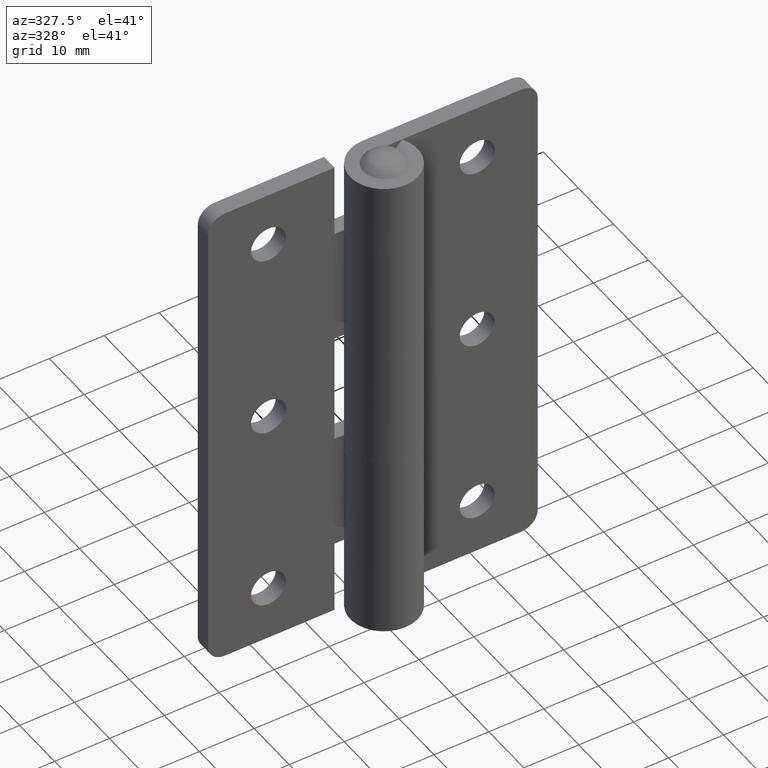
[diagram: clean part render]
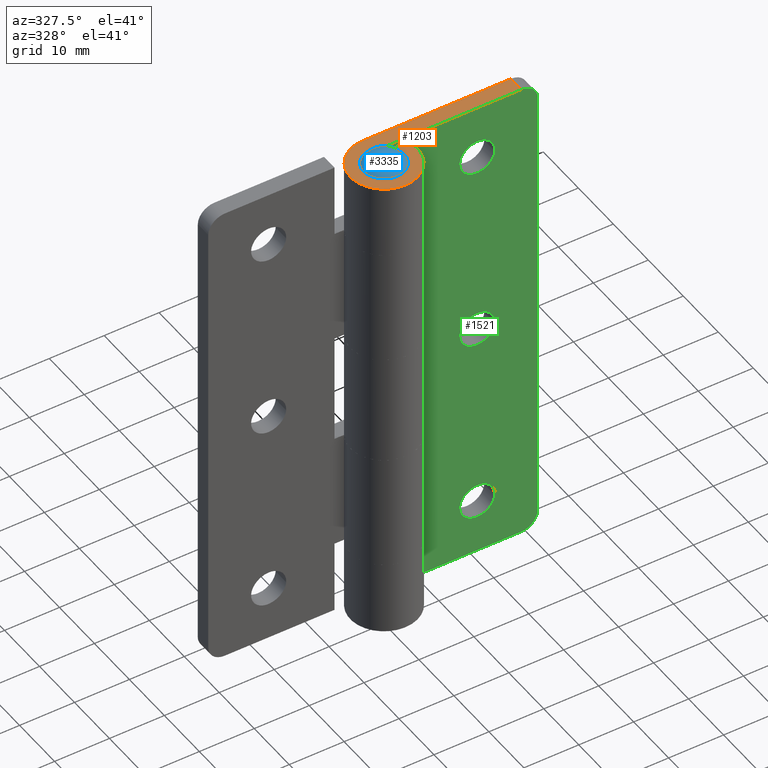
[diagram: same view with three faces highlighted in distinct colors, each labeled with its STEP entity id]
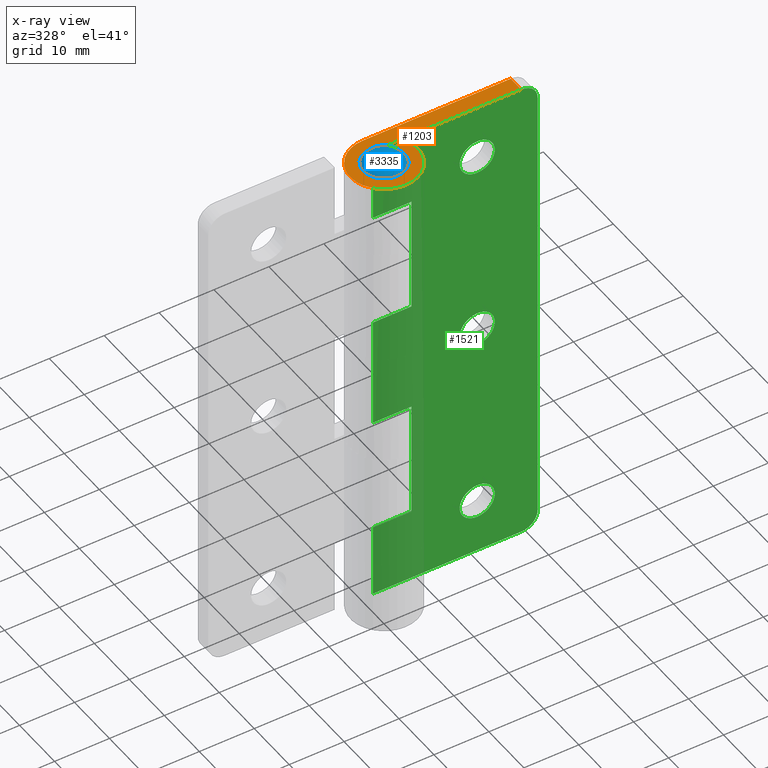
[diagram: x-ray of the same camera — body ghosted, the three highlighted faces saturated]
A machine part, auxiliary view with three faces highlighted in distinct colors.
The next image is the same camera in x-ray (body ghosted, the three faces saturated) — at least one of them is partly hidden behind the body in this view.
Their STEP definitions:

[orange] entity #1203 — the highlighted face is a freeform B-spline surface patch.
#604=CARTESIAN_POINT('',(27.0,6.150000000000000,90.0));
#605=VERTEX_POINT('',#604);
#621=CARTESIAN_POINT('',(27.0,3.150000000000000,90.0));
#622=VERTEX_POINT('',#621);
#623=CARTESIAN_POINT('',(27.0,3.150000000000000,90.0));
#624=CARTESIAN_POINT('',(27.0,6.150000000000000,90.0));
#625=QUASI_UNIFORM_CURVE('',1,(#623,#624),.UNSPECIFIED.,.F.,.U.);
#626=EDGE_CURVE('',#622,#605,#625,.T.);
#1134=CARTESIAN_POINT('',(-7.805836078495170,-6.764359578142428,90.0));
#1135=CARTESIAN_POINT('',(28.655843022462960,-6.764359578142428,90.0));
#1136=CARTESIAN_POINT('',(-7.805836078495170,6.764384097793787,90.0));
#1137=CARTESIAN_POINT('',(28.655843022462960,6.764384097793787,90.0));
#1138=B_SPLINE_SURFACE_WITH_KNOTS('',1,1,((#1134,#1136),(#1135,#1137)),.UNSPECIFIED.,.F.,.F.,.U.,(2,2),(2,2),(0.0,36.461679100958129),(0.0,13.528743675936219),.UNSPECIFIED.);
#1139=CARTESIAN_POINT('',(0.0,3.150000000000000,90.0));
#1140=VERTEX_POINT('',#1139);
#1141=CARTESIAN_POINT('',(27.0,3.150000000000000,90.0));
#1142=CARTESIAN_POINT('',(0.0,3.150000000000000,90.0));
#1143=QUASI_UNIFORM_CURVE('',1,(#1141,#1142),.UNSPECIFIED.,.F.,.U.);
#1144=EDGE_CURVE('',#622,#1140,#1143,.T.);
#1145=ORIENTED_EDGE('',*,*,#1144,.F.);
#1146=ORIENTED_EDGE('',*,*,#626,.T.);
#1147=CARTESIAN_POINT('',(-1.129699E-015,6.150000000000000,90.0));
#1148=VERTEX_POINT('',#1147);
#1149=CARTESIAN_POINT('',(-1.129699E-015,6.150000000000000,90.0));
#1150=CARTESIAN_POINT('',(27.0,6.150000000000000,90.0));
#1151=QUASI_UNIFORM_CURVE('',1,(#1149,#1150),.UNSPECIFIED.,.F.,.U.);
#1152=EDGE_CURVE('',#1148,#605,#1151,.T.);
#1153=ORIENTED_EDGE('',*,*,#1152,.F.);
#1154=CARTESIAN_POINT('',(5.311544031635240,3.100000000000000,90.0));
#1155=VERTEX_POINT('',#1154);
#1156=CARTESIAN_POINT('',(5.311544031635243,3.100000000000005,90.0));
#1157=CARTESIAN_POINT('',(7.693152769405606,-0.980651508643380,90.000000000000014));
#1158=CARTESIAN_POINT('',(4.364009819617648,-4.333349546745652,90.0));
#1159=CARTESIAN_POINT('',(1.034866869829693,-7.686047584847921,90.000000000000014));
#1160=CARTESIAN_POINT('',(-3.062474489689663,-5.333268228769301,90.0));
#1161=CARTESIAN_POINT('',(-7.159815849209024,-2.980488872690681,90.000000000000014));
#1162=CARTESIAN_POINT('',(-5.942310140296080,1.584755563654659,90.0));
#1163=CARTESIAN_POINT('',(-4.724804431383133,6.150000000000000,90.000000000000014));
#1164=CARTESIAN_POINT('',(0.0,6.150000000000000,90.0));
#1172=(BOUNDED_CURVE()B_SPLINE_CURVE(2,(#1156,#1157,#1158,#1159,#1160,#1161,#1162,#1163,#1164),.UNSPECIFIED.,.F.,.U.)B_SPLINE_CURVE_WITH_KNOTS((3,2,2,2,3),(0.0,0.250000000000000,0.500000000000000,0.750000000000000,1.0),.UNSPECIFIED.)CURVE()GEOMETRIC_REPRESENTATION_ITEM()RATIONAL_B_SPLINE_CURVE((1.0,0.792995533243587,1.0,0.792995533243587,1.0,0.792995533243587,1.0,0.792995533243587,1.0))REPRESENTATION_ITEM(''));
#1173=EDGE_CURVE('',#1155,#1148,#1172,.T.);
#1174=ORIENTED_EDGE('',*,*,#1173,.F.);
#1175=CARTESIAN_POINT('',(2.720546943032685,1.587804878048795,90.0));
#1176=VERTEX_POINT('',#1175);
#1177=CARTESIAN_POINT('',(2.720546943032685,1.587804878048795,90.0));
#1178=CARTESIAN_POINT('',(5.311544031635240,3.100000000000000,90.0));
#1179=QUASI_UNIFORM_CURVE('',1,(#1177,#1178),.UNSPECIFIED.,.F.,.U.);
#1180=EDGE_CURVE('',#1176,#1155,#1179,.T.);
#1181=ORIENTED_EDGE('',*,*,#1180,.F.);
#1182=CARTESIAN_POINT('',(2.720546943032680,1.587804878048793,90.0));
#1183=CARTESIAN_POINT('',(3.940395320915069,-0.502284919061232,90.0));
#1184=CARTESIAN_POINT('',(2.235224541755386,-2.219520499552645,90.0));
#1185=CARTESIAN_POINT('',(0.530053762595704,-3.936756080044056,90.0));
#1186=CARTESIAN_POINT('',(-1.568584494719091,-2.731673970833060,90.0));
#1187=CARTESIAN_POINT('',(-3.667222752033892,-1.526591861622059,90.0));
#1188=CARTESIAN_POINT('',(-3.043622266980918,0.811704069188972,90.0));
#1189=CARTESIAN_POINT('',(-2.420021781927948,3.150000000000001,90.0));
#1190=CARTESIAN_POINT('',(0.0,3.150000000000000,90.0));
#1198=(BOUNDED_CURVE()B_SPLINE_CURVE(2,(#1182,#1183,#1184,#1185,#1186,#1187,#1188,#1189,#1190),.UNSPECIFIED.,.F.,.U.)B_SPLINE_CURVE_WITH_KNOTS((3,2,2,2,3),(0.0,0.250000000000000,0.500000000000000,0.750000000000000,1.0),.UNSPECIFIED.)CURVE()GEOMETRIC_REPRESENTATION_ITEM()RATIONAL_B_SPLINE_CURVE((1.0,0.792995533243587,1.0,0.792995533243587,1.0,0.792995533243587,1.0,0.792995533243587,1.0))REPRESENTATION_ITEM(''));
#1199=EDGE_CURVE('',#1176,#1140,#1198,.T.);
#1200=ORIENTED_EDGE('',*,*,#1199,.T.);
#1201=EDGE_LOOP('',(#1145,#1146,#1153,#1174,#1181,#1200));
#1202=FACE_OUTER_BOUND('',#1201,.T.);
#1203=ADVANCED_FACE('',(#1202),#1138,.T.);

[blue] entity #3335 — the highlighted face is a freeform B-spline surface patch.
#3275=CARTESIAN_POINT('',(-3.080556192129969,-3.080556192129967,88.305634891740041));
#3276=CARTESIAN_POINT('',(-1.963830027256608,-3.927660054513207,89.681122476190481));
#3277=CARTESIAN_POINT('',(1.963830027256600,-3.927660054513207,89.681122476190481));
#3278=CARTESIAN_POINT('',(3.080556192129967,-3.080556192129967,88.305634891740041));
#3279=CARTESIAN_POINT('',(-3.927660054513212,-1.963830027256603,89.681122476190481));
#3280=CARTESIAN_POINT('',(-2.708671535175387,-2.708671535175376,92.100000000000193));
#3281=CARTESIAN_POINT('',(2.708671535175370,-2.708671535175376,92.100000000000207));
#3282=CARTESIAN_POINT('',(3.927660054513204,-1.963830027256603,89.681122476190481));
#3283=CARTESIAN_POINT('',(-3.927660054513212,1.963830027256605,89.681122476190481));
#3284=CARTESIAN_POINT('',(-2.708671535175387,2.708671535175381,92.100000000000193));
#3285=CARTESIAN_POINT('',(2.708671535175370,2.708671535175381,92.100000000000207));
#3286=CARTESIAN_POINT('',(3.927660054513204,1.963830027256605,89.681122476190481));
#3287=CARTESIAN_POINT('',(-3.080556192129969,3.080556192129968,88.305634891740041));
#3288=CARTESIAN_POINT('',(-1.963830027256608,3.927660054513208,89.681122476190481));
#3289=CARTESIAN_POINT('',(1.963830027256600,3.927660054513208,89.681122476190481));
#3290=CARTESIAN_POINT('',(3.080556192129967,3.080556192129968,88.305634891740041));
#3298=(BOUNDED_SURFACE()B_SPLINE_SURFACE(2,2,((#3275,#3279,#3283,#3287),(#3276,#3280,#3284,#3288),(#3277,#3281,#3285,#3289),(#3278,#3282,#3286,#3290)),.UNSPECIFIED.,.F.,.F.,.U.)B_SPLINE_SURFACE_WITH_KNOTS((3,1,3),(3,1,3),(0.0,4.553766691077590,9.107533382155181),(0.0,4.553766691077587,9.107533382155173),.UNSPECIFIED.)GEOMETRIC_REPRESENTATION_ITEM()RATIONAL_B_SPLINE_SURFACE(((1.758560056197216,1.379280028098608,1.379280028098608,1.758560056197216),(1.379280028098608,1.0,1.0,1.379280028098608),(1.379280028098608,1.0,1.0,1.379280028098608),(1.758560056197216,1.379280028098608,1.379280028098608,1.758560056197216)))REPRESENTATION_ITEM('')SURFACE());
#3299=CARTESIAN_POINT('',(3.749999840000065,0.0,90.0));
#3300=VERTEX_POINT('',#3299);
#3301=CARTESIAN_POINT('',(-3.749999840000065,0.0,90.0));
#3302=VERTEX_POINT('',#3301);
#3303=CARTESIAN_POINT('',(3.749999840000065,0.0,90.0));
#3304=CARTESIAN_POINT('',(3.749999840000066,3.749999840000066,89.999999999999986));
#3305=CARTESIAN_POINT('',(0.0,3.749999840000065,90.0));
#3306=CARTESIAN_POINT('',(-3.749999840000066,3.749999840000066,89.999999999999986));
#3307=CARTESIAN_POINT('',(-3.749999840000065,0.0,90.0));
#3315=(BOUNDED_CURVE()B_SPLINE_CURVE(2,(#3303,#3304,#3305,#3306,#3307),.UNSPECIFIED.,.F.,.U.)B_SPLINE_CURVE_WITH_KNOTS((3,2,3),(0.0,0.250000000000000,0.500000000000000),.UNSPECIFIED.)CURVE()GEOMETRIC_REPRESENTATION_ITEM()RATIONAL_B_SPLINE_CURVE((1.0,0.707106781186548,1.0,0.707106781186548,1.0))REPRESENTATION_ITEM(''));
#3316=EDGE_CURVE('',#3300,#3302,#3315,.T.);
#3317=ORIENTED_EDGE('',*,*,#3316,.T.);
#3318=CARTESIAN_POINT('',(-3.749999840000065,0.0,90.0));
#3319=CARTESIAN_POINT('',(-3.749999840000066,-3.749999840000066,89.999999999999986));
#3320=CARTESIAN_POINT('',(0.0,-3.749999840000065,90.0));
#3321=CARTESIAN_POINT('',(3.749999840000066,-3.749999840000066,89.999999999999986));
#3322=CARTESIAN_POINT('',(3.749999840000065,0.0,90.0));
#3330=(BOUNDED_CURVE()B_SPLINE_CURVE(2,(#3318,#3319,#3320,#3321,#3322),.UNSPECIFIED.,.F.,.U.)B_SPLINE_CURVE_WITH_KNOTS((3,2,3),(0.500000000000000,0.750000000000000,1.0),.UNSPECIFIED.)CURVE()GEOMETRIC_REPRESENTATION_ITEM()RATIONAL_B_SPLINE_CURVE((1.0,0.707106781186548,1.0,0.707106781186548,1.0))REPRESENTATION_ITEM(''));
#3331=EDGE_CURVE('',#3302,#3300,#3330,.T.);
#3332=ORIENTED_EDGE('',*,*,#3331,.T.);
#3333=EDGE_LOOP('',(#3317,#3332));
#3334=FACE_OUTER_BOUND('',#3333,.T.);
#3335=ADVANCED_FACE('',(#3334),#3298,.T.);

[green] entity #1521 — the highlighted face is a freeform B-spline surface patch.
#62=CARTESIAN_POINT('',(19.0,3.150000000000000,83.200000000000003));
#63=VERTEX_POINT('',#62);
#64=CARTESIAN_POINT('',(15.809864532060489,3.150000000000000,80.251069106411649));
#65=VERTEX_POINT('',#64);
#66=CARTESIAN_POINT('',(19.0,3.150000000000000,83.200000000000003));
#67=CARTESIAN_POINT('',(16.041950426847297,3.149999999999999,83.200000000000017));
#68=CARTESIAN_POINT('',(15.809864532060487,3.150000000000000,80.251069106411649));
#76=(BOUNDED_CURVE()B_SPLINE_CURVE(2,(#66,#67,#68),.UNSPECIFIED.,.F.,.U.)B_SPLINE_CURVE_WITH_KNOTS((3,3),(0.0,0.236331300623895),.UNSPECIFIED.)CURVE()GEOMETRIC_REPRESENTATION_ITEM()RATIONAL_B_SPLINE_CURVE((1.0,0.723120658615590,0.969723356153301))REPRESENTATION_ITEM(''));
#77=EDGE_CURVE('',#63,#65,#76,.T.);
#118=CARTESIAN_POINT('',(22.190135467939509,3.150000000000000,79.748930893588351));
#119=VERTEX_POINT('',#118);
#125=CARTESIAN_POINT('',(22.190135467939516,3.150000000000000,79.748930893588351));
#126=CARTESIAN_POINT('',(22.200000000000003,3.150000000000000,79.874271657492542));
#127=CARTESIAN_POINT('',(22.199999999999999,3.150000000000000,80.0));
#128=CARTESIAN_POINT('',(22.200000000000006,3.149999999999999,83.200000000000003));
#129=CARTESIAN_POINT('',(19.0,3.150000000000000,83.200000000000003));
#137=(BOUNDED_CURVE()B_SPLINE_CURVE(2,(#125,#126,#127,#128,#129),.UNSPECIFIED.,.F.,.U.)B_SPLINE_CURVE_WITH_KNOTS((3,2,3),(0.736331300623896,0.750000000000000,1.0),.UNSPECIFIED.)CURVE()GEOMETRIC_REPRESENTATION_ITEM()RATIONAL_B_SPLINE_CURVE((0.969723356153302,0.983986122570958,1.0,0.707106781186548,1.0))REPRESENTATION_ITEM(''));
#138=EDGE_CURVE('',#119,#63,#137,.T.);
#161=CARTESIAN_POINT('',(19.0,3.150000000000000,76.800000000000011));
#162=VERTEX_POINT('',#161);
#163=CARTESIAN_POINT('',(15.809864532060487,3.150000000000000,80.251069106411649));
#164=CARTESIAN_POINT('',(15.799999999999995,3.150000000000000,80.125728342507486));
#165=CARTESIAN_POINT('',(15.800000000000001,3.150000000000000,80.0));
#166=CARTESIAN_POINT('',(15.799999999999997,3.149999999999999,76.800000000000011));
#167=CARTESIAN_POINT('',(19.0,3.150000000000000,76.800000000000011));
#175=(BOUNDED_CURVE()B_SPLINE_CURVE(2,(#163,#164,#165,#166,#167),.UNSPECIFIED.,.F.,.U.)B_SPLINE_CURVE_WITH_KNOTS((3,2,3),(0.236331300623895,0.250000000000000,0.500000000000000),.UNSPECIFIED.)CURVE()GEOMETRIC_REPRESENTATION_ITEM()RATIONAL_B_SPLINE_CURVE((0.969723356153301,0.983986122570957,1.0,0.707106781186548,1.0))REPRESENTATION_ITEM(''));
#176=EDGE_CURVE('',#65,#162,#175,.T.);
#178=CARTESIAN_POINT('',(19.0,3.150000000000000,76.800000000000011));
#179=CARTESIAN_POINT('',(21.958049573152707,3.149999999999999,76.800000000000011));
#180=CARTESIAN_POINT('',(22.190135467939516,3.150000000000000,79.748930893588351));
#188=(BOUNDED_CURVE()B_SPLINE_CURVE(2,(#178,#179,#180),.UNSPECIFIED.,.F.,.U.)B_SPLINE_CURVE_WITH_KNOTS((3,3),(0.500000000000000,0.736331300623895),.UNSPECIFIED.)CURVE()GEOMETRIC_REPRESENTATION_ITEM()RATIONAL_B_SPLINE_CURVE((1.0,0.723120658615590,0.969723356153301))REPRESENTATION_ITEM(''));
#189=EDGE_CURVE('',#162,#119,#188,.T.);
#244=CARTESIAN_POINT('',(19.0,3.150000000000000,48.200000000000003));
#245=VERTEX_POINT('',#244);
#246=CARTESIAN_POINT('',(15.809864532060489,3.150000000000000,45.251069106411649));
#247=VERTEX_POINT('',#246);
#248=CARTESIAN_POINT('',(19.0,3.150000000000000,48.200000000000003));
#249=CARTESIAN_POINT('',(16.041950426847297,3.149999999999999,48.200000000000003));
#250=CARTESIAN_POINT('',(15.809864532060487,3.150000000000000,45.251069106411649));
#258=(BOUNDED_CURVE()B_SPLINE_CURVE(2,(#248,#249,#250),.UNSPECIFIED.,.F.,.U.)B_SPLINE_CURVE_WITH_KNOTS((3,3),(0.0,0.236331300623895),.UNSPECIFIED.)CURVE()GEOMETRIC_REPRESENTATION_ITEM()RATIONAL_B_SPLINE_CURVE((1.0,0.723120658615590,0.969723356153301))REPRESENTATION_ITEM(''));
#259=EDGE_CURVE('',#245,#247,#258,.T.);
#300=CARTESIAN_POINT('',(22.190135467939509,3.150000000000000,44.748930893588337));
#301=VERTEX_POINT('',#300);
#307=CARTESIAN_POINT('',(22.190135467939506,3.150000000000000,44.748930893588344));
#308=CARTESIAN_POINT('',(22.200000000000003,3.150000000000000,44.874271657492521));
#309=CARTESIAN_POINT('',(22.199999999999999,3.150000000000000,45.0));
#310=CARTESIAN_POINT('',(22.200000000000006,3.149999999999999,48.199999999999989));
#311=CARTESIAN_POINT('',(19.0,3.150000000000000,48.200000000000003));
#319=(BOUNDED_CURVE()B_SPLINE_CURVE(2,(#307,#308,#309,#310,#311),.UNSPECIFIED.,.F.,.U.)B_SPLINE_CURVE_WITH_KNOTS((3,2,3),(0.736331300623895,0.750000000000000,1.0),.UNSPECIFIED.)CURVE()GEOMETRIC_REPRESENTATION_ITEM()RATIONAL_B_SPLINE_CURVE((0.969723356153301,0.983986122570957,1.0,0.707106781186548,1.0))REPRESENTATION_ITEM(''));
#320=EDGE_CURVE('',#301,#245,#319,.T.);
#343=CARTESIAN_POINT('',(19.0,3.150000000000000,41.799999999999997));
#344=VERTEX_POINT('',#343);
#345=CARTESIAN_POINT('',(15.809864532060487,3.150000000000000,45.251069106411649));
#346=CARTESIAN_POINT('',(15.799999999999995,3.150000000000000,45.125728342507479));
#347=CARTESIAN_POINT('',(15.800000000000001,3.150000000000000,45.0));
#348=CARTESIAN_POINT('',(15.799999999999997,3.149999999999999,41.799999999999997));
#349=CARTESIAN_POINT('',(19.0,3.150000000000000,41.799999999999997));
#357=(BOUNDED_CURVE()B_SPLINE_CURVE(2,(#345,#346,#347,#348,#349),.UNSPECIFIED.,.F.,.U.)B_SPLINE_CURVE_WITH_KNOTS((3,2,3),(0.236331300623896,0.250000000000000,0.500000000000000),.UNSPECIFIED.)CURVE()GEOMETRIC_REPRESENTATION_ITEM()RATIONAL_B_SPLINE_CURVE((0.969723356153301,0.983986122570957,1.0,0.707106781186548,1.0))REPRESENTATION_ITEM(''));
#358=EDGE_CURVE('',#247,#344,#357,.T.);
#360=CARTESIAN_POINT('',(19.0,3.150000000000000,41.799999999999997));
#361=CARTESIAN_POINT('',(21.958049573152707,3.149999999999999,41.800000000000004));
#362=CARTESIAN_POINT('',(22.190135467939509,3.150000000000000,44.748930893588344));
#370=(BOUNDED_CURVE()B_SPLINE_CURVE(2,(#360,#361,#362),.UNSPECIFIED.,.F.,.U.)B_SPLINE_CURVE_WITH_KNOTS((3,3),(0.500000000000000,0.736331300623895),.UNSPECIFIED.)CURVE()GEOMETRIC_REPRESENTATION_ITEM()RATIONAL_B_SPLINE_CURVE((1.0,0.723120658615590,0.969723356153301))REPRESENTATION_ITEM(''));
#371=EDGE_CURVE('',#344,#301,#370,.T.);
#426=CARTESIAN_POINT('',(19.0,3.150000000000000,13.200000000000200));
#427=VERTEX_POINT('',#426);
#428=CARTESIAN_POINT('',(15.809864532060489,3.150000000000000,10.251069106411849));
#429=VERTEX_POINT('',#428);
#430=CARTESIAN_POINT('',(19.0,3.150000000000000,13.200000000000200));
#431=CARTESIAN_POINT('',(16.041950426847293,3.149999999999999,13.200000000000200));
#432=CARTESIAN_POINT('',(15.809864532060484,3.150000000000000,10.251069106411853));
#440=(BOUNDED_CURVE()B_SPLINE_CURVE(2,(#430,#431,#432),.UNSPECIFIED.,.F.,.U.)B_SPLINE_CURVE_WITH_KNOTS((3,3),(0.0,0.236331300623895),.UNSPECIFIED.)CURVE()GEOMETRIC_REPRESENTATION_ITEM()RATIONAL_B_SPLINE_CURVE((1.0,0.723120658615591,0.969723356153301))REPRESENTATION_ITEM(''));
#441=EDGE_CURVE('',#427,#429,#440,.T.);
#482=CARTESIAN_POINT('',(22.190135467939509,3.150000000000000,9.748930893588545));
#483=VERTEX_POINT('',#482);
#489=CARTESIAN_POINT('',(22.190135467939506,3.150000000000000,9.748930893588545));
#490=CARTESIAN_POINT('',(22.200000000000003,3.150000000000000,9.874271657492724));
#491=CARTESIAN_POINT('',(22.199999999999999,3.150000000000000,10.000000000000201));
#492=CARTESIAN_POINT('',(22.200000000000006,3.149999999999999,13.200000000000200));
#493=CARTESIAN_POINT('',(19.0,3.150000000000000,13.200000000000200));
#501=(BOUNDED_CURVE()B_SPLINE_CURVE(2,(#489,#490,#491,#492,#493),.UNSPECIFIED.,.F.,.U.)B_SPLINE_CURVE_WITH_KNOTS((3,2,3),(0.736331300623895,0.750000000000000,1.0),.UNSPECIFIED.)CURVE()GEOMETRIC_REPRESENTATION_ITEM()RATIONAL_B_SPLINE_CURVE((0.969723356153301,0.983986122570957,1.0,0.707106781186548,1.0))REPRESENTATION_ITEM(''));
#502=EDGE_CURVE('',#483,#427,#501,.T.);
#525=CARTESIAN_POINT('',(19.0,3.150000000000000,6.800000000000200));
#526=VERTEX_POINT('',#525);
#527=CARTESIAN_POINT('',(15.809864532060484,3.150000000000000,10.251069106411853));
#528=CARTESIAN_POINT('',(15.799999999999999,3.150000000000000,10.125728342507676));
#529=CARTESIAN_POINT('',(15.800000000000001,3.150000000000000,10.000000000000201));
#530=CARTESIAN_POINT('',(15.799999999999997,3.149999999999999,6.800000000000200));
#531=CARTESIAN_POINT('',(19.0,3.150000000000000,6.800000000000200));
#539=(BOUNDED_CURVE()B_SPLINE_CURVE(2,(#527,#528,#529,#530,#531),.UNSPECIFIED.,.F.,.U.)B_SPLINE_CURVE_WITH_KNOTS((3,2,3),(0.236331300623895,0.250000000000000,0.500000000000000),.UNSPECIFIED.)CURVE()GEOMETRIC_REPRESENTATION_ITEM()RATIONAL_B_SPLINE_CURVE((0.969723356153301,0.983986122570957,1.0,0.707106781186548,1.0))REPRESENTATION_ITEM(''));
#540=EDGE_CURVE('',#429,#526,#539,.T.);
#542=CARTESIAN_POINT('',(19.0,3.150000000000000,6.800000000000200));
#543=CARTESIAN_POINT('',(21.958049573152707,3.149999999999999,6.800000000000201));
#544=CARTESIAN_POINT('',(22.190135467939509,3.150000000000000,9.748930893588545));
#552=(BOUNDED_CURVE()B_SPLINE_CURVE(2,(#542,#543,#544),.UNSPECIFIED.,.F.,.U.)B_SPLINE_CURVE_WITH_KNOTS((3,3),(0.500000000000000,0.736331300623895),.UNSPECIFIED.)CURVE()GEOMETRIC_REPRESENTATION_ITEM()RATIONAL_B_SPLINE_CURVE((1.0,0.723120658615590,0.969723356153301))REPRESENTATION_ITEM(''));
#553=EDGE_CURVE('',#526,#483,#552,.T.);
#621=CARTESIAN_POINT('',(27.0,3.150000000000000,90.0));
#622=VERTEX_POINT('',#621);
#628=CARTESIAN_POINT('',(30.0,3.150000000000000,87.0));
#629=VERTEX_POINT('',#628);
#630=CARTESIAN_POINT('',(30.0,3.150000000000000,87.0));
#631=CARTESIAN_POINT('',(30.000000000000004,3.149999999999999,89.999999999999986));
#632=CARTESIAN_POINT('',(27.0,3.150000000000000,90.0));
#640=(BOUNDED_CURVE()B_SPLINE_CURVE(2,(#630,#631,#632),.UNSPECIFIED.,.F.,.U.)CURVE()GEOMETRIC_REPRESENTATION_ITEM()QUASI_UNIFORM_CURVE()RATIONAL_B_SPLINE_CURVE((1.0,0.707106781186548,1.0))REPRESENTATION_ITEM(''));
#641=EDGE_CURVE('',#629,#622,#640,.T.);
#682=CARTESIAN_POINT('',(30.0,3.150000000000000,3.0));
#683=VERTEX_POINT('',#682);
#689=CARTESIAN_POINT('',(27.0,3.150000000000000,0.0));
#690=VERTEX_POINT('',#689);
#691=CARTESIAN_POINT('',(27.0,3.150000000000000,0.0));
#692=CARTESIAN_POINT('',(30.000000000000004,3.149999999999999,0.0));
#693=CARTESIAN_POINT('',(30.0,3.150000000000000,3.0));
#701=(BOUNDED_CURVE()B_SPLINE_CURVE(2,(#691,#692,#693),.UNSPECIFIED.,.F.,.U.)CURVE()GEOMETRIC_REPRESENTATION_ITEM()QUASI_UNIFORM_CURVE()RATIONAL_B_SPLINE_CURVE((1.0,0.707106781186548,1.0))REPRESENTATION_ITEM(''));
#702=EDGE_CURVE('',#690,#683,#701,.T.);
#717=CARTESIAN_POINT('',(0.0,3.150000000000000,34.799999999999997));
#718=VERTEX_POINT('',#717);
#775=CARTESIAN_POINT('',(7.0,3.150000000000000,34.799999999999997));
#776=VERTEX_POINT('',#775);
#782=CARTESIAN_POINT('',(0.0,3.150000000000000,34.799999999999997));
#783=CARTESIAN_POINT('',(7.0,3.150000000000000,34.799999999999997));
#784=QUASI_UNIFORM_CURVE('',1,(#782,#783),.UNSPECIFIED.,.F.,.U.);
#785=EDGE_CURVE('',#718,#776,#784,.T.);
#795=CARTESIAN_POINT('',(7.0,3.150000000000000,13.500000000000000));
#796=VERTEX_POINT('',#795);
#839=CARTESIAN_POINT('',(0.0,3.150000000000000,13.499999999999840));
#840=VERTEX_POINT('',#839);
#860=CARTESIAN_POINT('',(7.0,3.150000000000000,13.500000000000000));
#861=CARTESIAN_POINT('',(0.0,3.150000000000000,13.499999999999840));
#862=QUASI_UNIFORM_CURVE('',1,(#860,#861),.UNSPECIFIED.,.F.,.U.);
#863=EDGE_CURVE('',#796,#840,#862,.T.);
#880=CARTESIAN_POINT('',(7.0,3.150000000000000,34.799999999999997));
#881=CARTESIAN_POINT('',(7.0,3.150000000000000,13.500000000000000));
#882=QUASI_UNIFORM_CURVE('',1,(#880,#881),.UNSPECIFIED.,.F.,.U.);
#883=EDGE_CURVE('',#776,#796,#882,.T.);
#893=CARTESIAN_POINT('',(7.0,3.150000000000000,55.200000000000003));
#894=VERTEX_POINT('',#893);
#937=CARTESIAN_POINT('',(0.0,3.150000000000000,55.200000000000003));
#938=VERTEX_POINT('',#937);
#958=CARTESIAN_POINT('',(7.0,3.150000000000000,55.200000000000003));
#959=CARTESIAN_POINT('',(0.0,3.150000000000000,55.200000000000003));
#960=QUASI_UNIFORM_CURVE('',1,(#958,#959),.UNSPECIFIED.,.F.,.U.);
#961=EDGE_CURVE('',#894,#938,#960,.T.);
#971=CARTESIAN_POINT('',(0.0,3.150000000000000,76.500000000000000));
#972=VERTEX_POINT('',#971);
#1029=CARTESIAN_POINT('',(7.0,3.150000000000000,76.500000000000000));
#1030=VERTEX_POINT('',#1029);
#1036=CARTESIAN_POINT('',(0.0,3.150000000000000,76.500000000000000));
#1037=CARTESIAN_POINT('',(7.0,3.150000000000000,76.500000000000000));
#1038=QUASI_UNIFORM_CURVE('',1,(#1036,#1037),.UNSPECIFIED.,.F.,.U.);
#1039=EDGE_CURVE('',#972,#1030,#1038,.T.);
#1056=CARTESIAN_POINT('',(7.0,3.150000000000000,76.500000000000000));
#1057=CARTESIAN_POINT('',(7.0,3.150000000000000,55.200000000000003));
#1058=QUASI_UNIFORM_CURVE('',1,(#1056,#1057),.UNSPECIFIED.,.F.,.U.);
#1059=EDGE_CURVE('',#1030,#894,#1058,.T.);
#1077=CARTESIAN_POINT('',(0.0,3.150000000000000,0.0));
#1078=VERTEX_POINT('',#1077);
#1079=CARTESIAN_POINT('',(27.0,3.150000000000000,0.0));
#1080=CARTESIAN_POINT('',(0.0,3.150000000000000,0.0));
#1081=QUASI_UNIFORM_CURVE('',1,(#1079,#1080),.UNSPECIFIED.,.F.,.U.);
#1082=EDGE_CURVE('',#690,#1078,#1081,.T.);
#1139=CARTESIAN_POINT('',(0.0,3.150000000000000,90.0));
#1140=VERTEX_POINT('',#1139);
#1141=CARTESIAN_POINT('',(27.0,3.150000000000000,90.0));
#1142=CARTESIAN_POINT('',(0.0,3.150000000000000,90.0));
#1143=QUASI_UNIFORM_CURVE('',1,(#1141,#1142),.UNSPECIFIED.,.F.,.U.);
#1144=EDGE_CURVE('',#622,#1140,#1143,.T.);
#1209=CARTESIAN_POINT('',(30.0,3.150000000000000,87.0));
#1210=CARTESIAN_POINT('',(30.0,3.150000000000000,3.0));
#1211=QUASI_UNIFORM_CURVE('',1,(#1209,#1210),.UNSPECIFIED.,.F.,.U.);
#1212=EDGE_CURVE('',#629,#683,#1211,.T.);
#1300=CARTESIAN_POINT('',(0.0,3.150000000000000,90.0));
#1301=CARTESIAN_POINT('',(0.0,3.150000000000000,76.500000000000000));
#1302=QUASI_UNIFORM_CURVE('',1,(#1300,#1301),.UNSPECIFIED.,.F.,.U.);
#1303=EDGE_CURVE('',#1140,#972,#1302,.T.);
#1439=CARTESIAN_POINT('',(0.0,3.150000000000000,55.200000000000003));
#1440=CARTESIAN_POINT('',(0.0,3.150000000000000,34.799999999999997));
#1441=QUASI_UNIFORM_CURVE('',1,(#1439,#1440),.UNSPECIFIED.,.F.,.U.);
#1442=EDGE_CURVE('',#938,#718,#1441,.T.);
#1474=CARTESIAN_POINT('',(0.0,3.150000000000000,13.499999999999840));
#1475=CARTESIAN_POINT('',(0.0,3.150000000000000,0.0));
#1476=QUASI_UNIFORM_CURVE('',1,(#1474,#1475),.UNSPECIFIED.,.F.,.U.);
#1477=EDGE_CURVE('',#840,#1078,#1476,.T.);
#1482=CARTESIAN_POINT('',(-1.498499941854179,3.150000000000000,94.495499825562533));
#1483=CARTESIAN_POINT('',(-1.498499941854179,3.150000000000000,-4.495502239550651));
#1484=CARTESIAN_POINT('',(31.498500746516889,3.150000000000000,94.495499825562533));
#1485=CARTESIAN_POINT('',(31.498500746516889,3.150000000000000,-4.495502239550651));
#1486=B_SPLINE_SURFACE_WITH_KNOTS('',1,1,((#1482,#1484),(#1483,#1485)),.UNSPECIFIED.,.F.,.F.,.U.,(2,2),(2,2),(0.0,98.991002065113179),(0.0,32.997000688371067),.UNSPECIFIED.);
#1487=ORIENTED_EDGE('',*,*,#1082,.F.);
#1488=ORIENTED_EDGE('',*,*,#702,.T.);
#1489=ORIENTED_EDGE('',*,*,#1212,.F.);
#1490=ORIENTED_EDGE('',*,*,#641,.T.);
#1491=ORIENTED_EDGE('',*,*,#1144,.T.);
#1492=ORIENTED_EDGE('',*,*,#1303,.T.);
#1493=ORIENTED_EDGE('',*,*,#1039,.T.);
#1494=ORIENTED_EDGE('',*,*,#1059,.T.);
#1495=ORIENTED_EDGE('',*,*,#961,.T.);
#1496=ORIENTED_EDGE('',*,*,#1442,.T.);
#1497=ORIENTED_EDGE('',*,*,#785,.T.);
#1498=ORIENTED_EDGE('',*,*,#883,.T.);
#1499=ORIENTED_EDGE('',*,*,#863,.T.);
#1500=ORIENTED_EDGE('',*,*,#1477,.T.);
#1501=EDGE_LOOP('',(#1487,#1488,#1489,#1490,#1491,#1492,#1493,#1494,#1495,#1496,#1497,#1498,#1499,#1500));
#1502=FACE_OUTER_BOUND('',#1501,.T.);
#1503=ORIENTED_EDGE('',*,*,#553,.F.);
#1504=ORIENTED_EDGE('',*,*,#540,.F.);
#1505=ORIENTED_EDGE('',*,*,#441,.F.);
#1506=ORIENTED_EDGE('',*,*,#502,.F.);
#1507=EDGE_LOOP('',(#1503,#1504,#1505,#1506));
#1508=FACE_BOUND('',#1507,.T.);
#1509=ORIENTED_EDGE('',*,*,#371,.F.);
#1510=ORIENTED_EDGE('',*,*,#358,.F.);
#1511=ORIENTED_EDGE('',*,*,#259,.F.);
#1512=ORIENTED_EDGE('',*,*,#320,.F.);
#1513=EDGE_LOOP('',(#1509,#1510,#1511,#1512));
#1514=FACE_BOUND('',#1513,.T.);
#1515=ORIENTED_EDGE('',*,*,#189,.F.);
#1516=ORIENTED_EDGE('',*,*,#176,.F.);
#1517=ORIENTED_EDGE('',*,*,#77,.F.);
#1518=ORIENTED_EDGE('',*,*,#138,.F.);
#1519=EDGE_LOOP('',(#1515,#1516,#1517,#1518));
#1520=FACE_BOUND('',#1519,.T.);
#1521=ADVANCED_FACE('',(#1502,#1508,#1514,#1520),#1486,.T.);